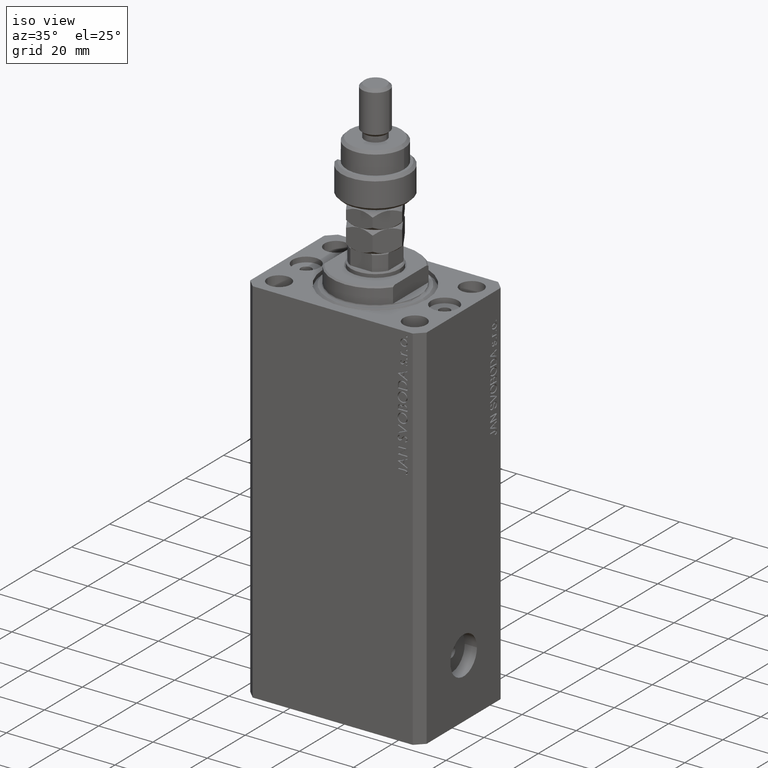
[diagram: clean part render]
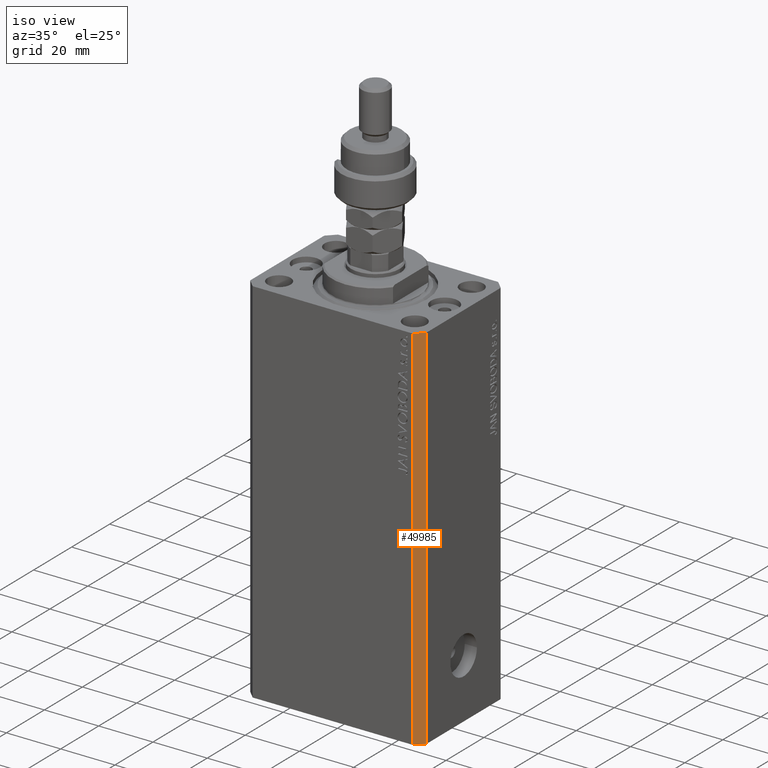
[diagram: same view with one face highlighted and labeled with its STEP entity id]
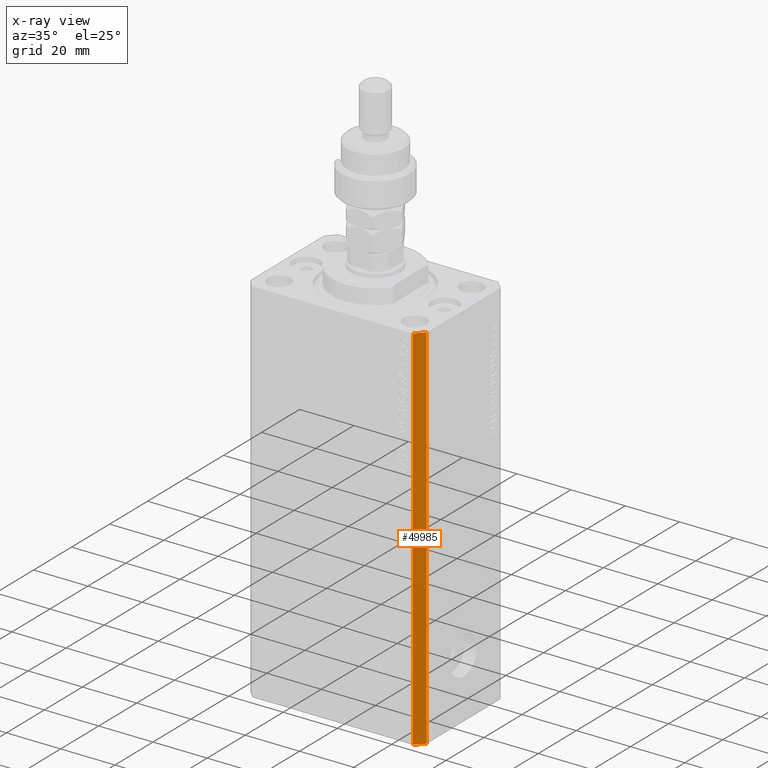
[diagram: x-ray of the same camera — body ghosted, the highlighted face saturated]
A machine part, iso view. The second image highlights one B-rep face of the part: STEP entity #49985.
The next image is the same camera in x-ray: the body ghosted, the highlighted face saturated — about 0% of this face is hidden behind the body in this view.
In plain terms, the highlighted planar face has unit normal (0.7071, -0.7071, 0).
Its self-contained STEP definition (entity closure, byte-faithful):
#3002 = VECTOR ( 'NONE', #12349, 1000.000000000000000 ) ;
#3454 = EDGE_CURVE ( 'NONE', #13330, #44513, #41156, .T. ) ;
#5621 = DIRECTION ( 'NONE',  ( 0.000000000000000000, 0.000000000000000000, 1.000000000000000000 ) ) ;
#7741 = CARTESIAN_POINT ( 'NONE',  ( 29.49999999999650413, -22.49999999999949196, -137.0000000000000000 ) ) ;
#11257 = ORIENTED_EDGE ( 'NONE', *, *, #42341, .T. ) ;
#12349 = DIRECTION ( 'NONE',  ( 0.7071067811865483499, 0.7071067811865466846, 0.000000000000000000 ) ) ;
#13330 = VERTEX_POINT ( 'NONE', #42246 ) ;
#13344 = CARTESIAN_POINT ( 'NONE',  ( 32.49999999999651124, -19.49999999999949196, 0.000000000000000000 ) ) ;
#14835 = VERTEX_POINT ( 'NONE', #20091 ) ;
#16728 = FACE_OUTER_BOUND ( 'NONE', #19625, .T. ) ;
#17320 = AXIS2_PLACEMENT_3D ( 'NONE', #48099, #43820, #47848 ) ;
#19625 = EDGE_LOOP ( 'NONE', ( #28903, #22204, #31204, #11257 ) ) ;
#19631 = DIRECTION ( 'NONE',  ( 0.000000000000000000, 0.000000000000000000, 1.000000000000000000 ) ) ;
#19694 = CARTESIAN_POINT ( 'NONE',  ( 32.49999999999651124, -19.49999999999949196, -137.0000000000000000 ) ) ;
#20091 = CARTESIAN_POINT ( 'NONE',  ( 29.49999999999650413, -22.49999999999949196, -137.0000000000000000 ) ) ;
#20097 = VERTEX_POINT ( 'NONE', #19694 ) ;
#20161 = EDGE_CURVE ( 'NONE', #14835, #20097, #39694, .T. ) ;
#20336 = VECTOR ( 'NONE', #37343, 1000.000000000000000 ) ;
#20343 = VECTOR ( 'NONE', #5621, 1000.000000000000000 ) ;
#20553 = LINE ( 'NONE', #40294, #20343 ) ;
#21892 = CARTESIAN_POINT ( 'NONE',  ( 29.49999999999650413, -22.49999999999949196, 0.000000000000000000 ) ) ;
#22204 = ORIENTED_EDGE ( 'NONE', *, *, #38639, .F. ) ;
#25168 = VECTOR ( 'NONE', #19631, 1000.000000000000000 ) ;
#28903 = ORIENTED_EDGE ( 'NONE', *, *, #3454, .F. ) ;
#31204 = ORIENTED_EDGE ( 'NONE', *, *, #20161, .T. ) ;
#31342 = CARTESIAN_POINT ( 'NONE',  ( 29.49999999999650413, -22.49999999999949196, -137.0000000000000000 ) ) ;
#37343 = DIRECTION ( 'NONE',  ( 0.7071067811865483499, 0.7071067811865466846, 0.000000000000000000 ) ) ;
#38639 = EDGE_CURVE ( 'NONE', #14835, #13330, #38882, .T. ) ;
#38882 = LINE ( 'NONE', #7741, #25168 ) ;
#39694 = LINE ( 'NONE', #31342, #3002 ) ;
#40032 = PLANE ( 'NONE',  #17320 ) ;
#40294 = CARTESIAN_POINT ( 'NONE',  ( 32.49999999999651124, -19.49999999999949196, -137.0000000000000000 ) ) ;
#41156 = LINE ( 'NONE', #21892, #20336 ) ;
#42246 = CARTESIAN_POINT ( 'NONE',  ( 29.49999999999650413, -22.49999999999949196, 0.000000000000000000 ) ) ;
#42341 = EDGE_CURVE ( 'NONE', #20097, #44513, #20553, .T. ) ;
#43820 = DIRECTION ( 'NONE',  ( 0.7071067811865467956, -0.7071067811865483499, 0.000000000000000000 ) ) ;
#44513 = VERTEX_POINT ( 'NONE', #13344 ) ;
#47848 = DIRECTION ( 'NONE',  ( 0.7071067811865483499, 0.7071067811865467956, 0.000000000000000000 ) ) ;
#48099 = CARTESIAN_POINT ( 'NONE',  ( 29.49999999999650413, -22.49999999999949196, -137.0000000000000000 ) ) ;
#49985 = ADVANCED_FACE ( 'NONE', ( #16728 ), #40032, .T. ) ;